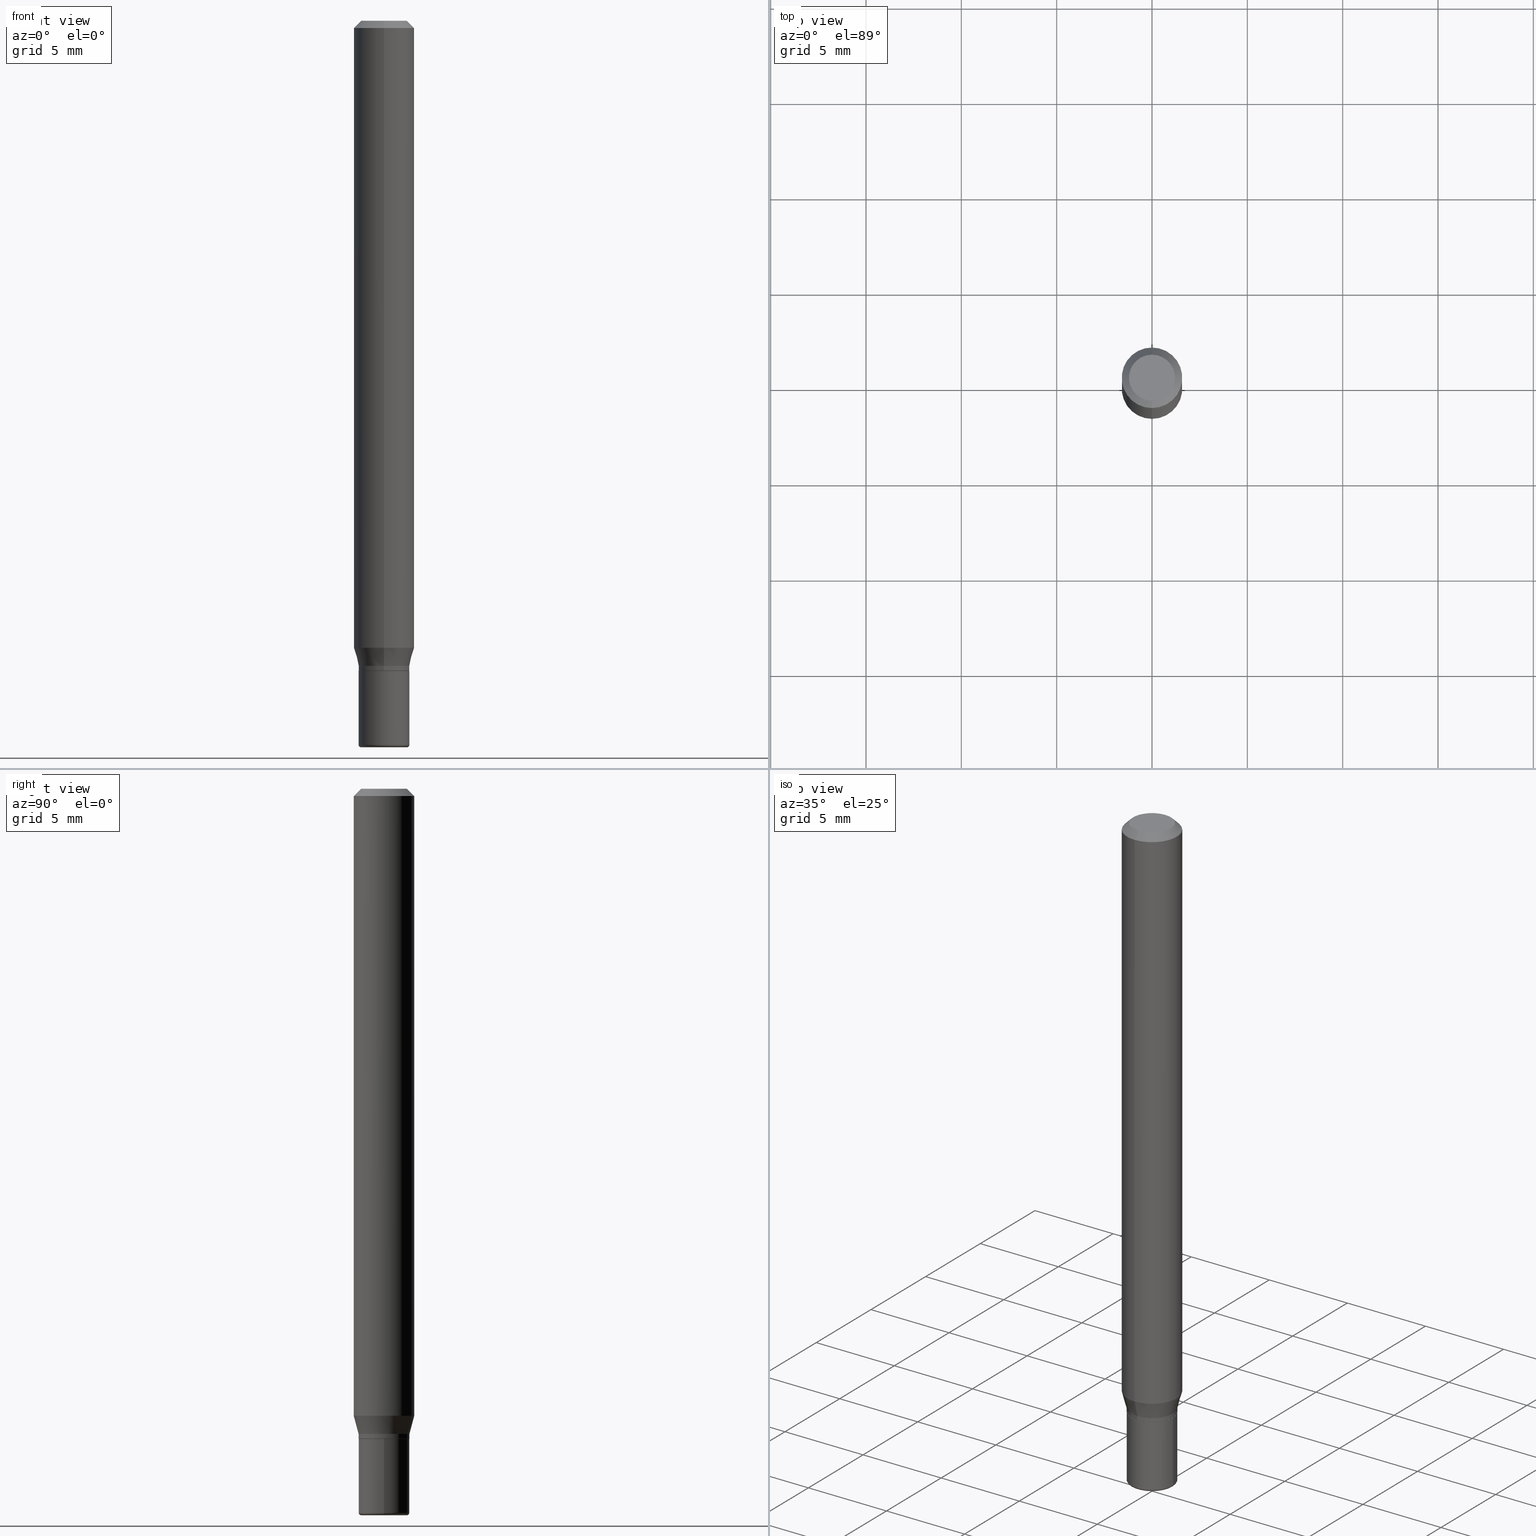
[diagram: canonical four-view strip — front | top / right | iso, engineering-drawing reading convention]
A machine part, canonical four-view strip (front | top / right | iso — engineering-drawing reading convention). The complete STEP part file that produces these views, byte-faithful:
ISO-10303-21;
HEADER;
FILE_DESCRIPTION (( 'STEP AP203' ),
    '1' );
FILE_NAME ('09226.STEP',
    '2024-02-29T23:40:03',
    ( '' ),
    ( '' ),
    'SwSTEP 2.0',
    'SolidWorks 2023',
    '' );
FILE_SCHEMA (( 'CONFIG_CONTROL_DESIGN' ));
ENDSEC;

DATA;
#1 = CARTESIAN_POINT ( 'NONE',  ( 4.440892098500944664E-16, 0.06249999999999995143, -0.01499999999999992138 ) ) ;
#2 = DIRECTION ( 'NONE',  ( -6.982962677686265922E-15, -1.000000000000000000, 5.253553833969728372E-15 ) ) ;
#3 = DIRECTION ( 'NONE',  ( -6.982962677686265922E-15, -1.000000000000000000, 5.203519987931918896E-15 ) ) ;
#4 = CARTESIAN_POINT ( 'NONE',  ( -4.364351673553916201E-16, -0.06250000000000000000, 2.182069885281771942E-16 ) ) ;
#5 = LOCAL_TIME ( 18, 40, 3.000000000000000000, #122 ) ;
#6 = DIRECTION ( 'NONE',  ( -4.851104656540966641E-15, -0.7071067811865503483, -0.7071067811865446862 ) ) ;
#7 = DIRECTION ( 'NONE',  ( -6.982962677686265133E-15, -1.000000000000000000, 3.491311816450835501E-15 ) ) ;
#8 = ADVANCED_FACE ( 'NONE', ( #371 ), #427, .F. ) ;
#9 = DIRECTION ( 'NONE',  ( -1.000000000000000000, 6.982962677686265922E-15, -4.876176775795935793E-29 ) ) ;
#10 = DIRECTION ( 'NONE',  ( 1.000000000000000000, -6.982962677686266711E-15, 4.876176775795936353E-29 ) ) ;
#11 = ORIENTED_EDGE ( 'NONE', *, *, #465, .T. ) ;
#12 = CIRCLE ( 'NONE', #185, 0.05250000000000017153 ) ;
#13 = AXIS2_PLACEMENT_3D ( 'NONE', #369, #463, #254 ) ;
#14 = ORIENTED_EDGE ( 'NONE', *, *, #286, .F. ) ;
#15 = DIRECTION ( 'NONE',  ( -2.445468806185136597E-29, 3.491481338843145583E-15, 1.000000000000000000 ) ) ;
#16 = EDGE_LOOP ( 'NONE', ( #365, #457, #370, #82 ) ) ;
#17 = EDGE_LOOP ( 'NONE', ( #167, #329, #215, #418 ) ) ;
#18 = CIRCLE ( 'NONE', #27, 0.005000000000000177046 ) ;
#19 = EDGE_LOOP ( 'NONE', ( #379, #172 ) ) ;
#20 = ORIENTED_EDGE ( 'NONE', *, *, #203, .T. ) ;
#21 = EDGE_CURVE ( 'NONE', #258, #368, #114, .T. ) ;
#22 = PERSON_AND_ORGANIZATION ( #223, #85 ) ;
#23 = CARTESIAN_POINT ( 'NONE',  ( -0.05249999999999999806, -4.579631342874949516E-15, -1.342000000000000082 ) ) ;
#24 = VERTEX_POINT ( 'NONE', #36 ) ;
#25 = EDGE_CURVE ( 'NONE', #312, #486, #121, .T. ) ;
#26 = AXIS2_PLACEMENT_3D ( 'NONE', #234, #394, #151 ) ;
#27 = AXIS2_PLACEMENT_3D ( 'NONE', #35, #317, #396 ) ;
#28 = ADVANCED_FACE ( 'NONE', ( #442 ), #387, .T. ) ;
#29 = EDGE_LOOP ( 'NONE', ( #241, #297 ) ) ;
#30 = PERSON_AND_ORGANIZATION ( #223, #85 ) ;
#31 = DIRECTION ( 'NONE',  ( 4.937700262164550409E-15, 0.7071067811865454633, -0.7071067811865495711 ) ) ;
#32 = DIRECTION ( 'NONE',  ( 5.024295867788576727E-15, 0.7071067811866224018, 0.7071067811864726327 ) ) ;
#33 = DIRECTION ( 'NONE',  ( -2.445468806185136597E-29, 3.491481338843145583E-15, 1.000000000000000000 ) ) ;
#34 = VECTOR ( 'NONE', #382, 39.37007874015748143 ) ;
#35 = CARTESIAN_POINT ( 'NONE',  ( -0.04749999999999999362, -4.882256802084455647E-15, -1.495000000000000107 ) ) ;
#36 = CARTESIAN_POINT ( 'NONE',  ( 0.05250000000000017153, -5.586370142149033090E-15, -1.495000000000000107 ) ) ;
#37 = EDGE_CURVE ( 'NONE', #199, #108, #267, .T. ) ;
#38 = CARTESIAN_POINT ( 'NONE',  ( 3.668380774558412962E-31, -5.236967724676149048E-17, -0.01499999999999970281 ) ) ;
#39 = DIRECTION ( 'NONE',  ( -6.982962677686265922E-15, -1.000000000000000000, 5.253553833969728372E-15 ) ) ;
#40 = EDGE_CURVE ( 'NONE', #285, #486, #71, .T. ) ;
#41 = DIRECTION ( 'NONE',  ( -6.982962677686265922E-15, -1.000000000000000000, 4.370956789862821150E-15 ) ) ;
#42 = CONICAL_SURFACE ( 'NONE', #252, 0.05200000000000008782, 0.7853981633975507526 ) ;
#43 = ORIENTED_EDGE ( 'NONE', *, *, #359, .T. ) ;
#44 = EDGE_CURVE ( 'NONE', #368, #258, #391, .T. ) ;
#45 = APPLICATION_PROTOCOL_DEFINITION ( 'international standard', 'config_control_design', 1994, #491 ) ;
#46 = EDGE_CURVE ( 'NONE', #128, #354, #444, .T. ) ;
#47 = CIRCLE ( 'NONE', #161, 0.06250000000000000000 ) ;
#48 = CIRCLE ( 'NONE', #445, 0.05200000000000008782 ) ;
#49 = LOCAL_TIME ( 18, 40, 3.000000000000000000, #126 ) ;
#50 = DIRECTION ( 'NONE',  ( -6.982962677686265133E-15, -1.000000000000000000, 3.491311816450835501E-15 ) ) ;
#51 = ORIENTED_EDGE ( 'NONE', *, *, #203, .F. ) ;
#52 = VERTEX_POINT ( 'NONE', #192 ) ;
#53 = ORIENTED_EDGE ( 'NONE', *, *, #109, .F. ) ;
#54 = AXIS2_PLACEMENT_3D ( 'NONE', #307, #232, #3 ) ;
#55 = EDGE_CURVE ( 'NONE', #469, #108, #47, .T. ) ;
#56 = ORIENTED_EDGE ( 'NONE', *, *, #305, .T. ) ;
#57 = VERTEX_POINT ( 'NONE', #308 ) ;
#58 = EDGE_LOOP ( 'NONE', ( #142, #439, #421, #51 ) ) ;
#59 = CALENDAR_DATE ( 2024, 29, 2 ) ;
#60 = ORIENTED_EDGE ( 'NONE', *, *, #272, .T. ) ;
#61 = DIRECTION ( 'NONE',  ( -6.982962677686265133E-15, -1.000000000000000000, 3.491311816450835107E-15 ) ) ;
#62 = ADVANCED_FACE ( 'NONE', ( #352 ), #265, .T. ) ;
#63 = CARTESIAN_POINT ( 'NONE',  ( -6.680775512965913768E-45, 9.537452049650120566E-31, 2.731767470527915752E-16 ) ) ;
#64 = VECTOR ( 'NONE', #212, 39.37007874015748143 ) ;
#65 = CARTESIAN_POINT ( 'NONE',  ( 3.655975865246779122E-29, -5.219764601570503141E-15, -1.495000000000000107 ) ) ;
#66 = CC_DESIGN_PERSON_AND_ORGANIZATION_ASSIGNMENT ( #220, #143, ( #422 ) ) ;
#67 = CARTESIAN_POINT ( 'NONE',  ( 3.316907271900976589E-16, 0.04750000000000000749, -2.924893775501889919E-17 ) ) ;
#68 = PERSON_AND_ORGANIZATION ( #223, #85 ) ;
#69 = CARTESIAN_POINT ( 'NONE',  ( 3.281977999638324867E-29, -4.685340457677020428E-15, -1.342000000000000082 ) ) ;
#70 = CARTESIAN_POINT ( 'NONE',  ( -6.680775512965913768E-45, 9.537452049650120566E-31, 2.731767470527915752E-16 ) ) ;
#71 = LINE ( 'NONE', #76, #89 ) ;
#72 = LINE ( 'NONE', #4, #281 ) ;
#73 = DIRECTION ( 'NONE',  ( -2.445468806185136597E-29, 3.491481338843145583E-15, 1.000000000000000000 ) ) ;
#74 = AXIS2_PLACEMENT_3D ( 'NONE', #154, #314, #313 ) ;
#75 = AXIS2_PLACEMENT_3D ( 'NONE', #449, #407, #411 ) ;
#76 = CARTESIAN_POINT ( 'NONE',  ( 3.694822225952854584E-16, 0.05199999999999539713, -1.342000000000000304 ) ) ;
#77 = DIRECTION ( 'NONE',  ( -2.445587183038990238E-29, 3.491311816450835107E-15, 1.000000000000000000 ) ) ;
#78 = DIRECTION ( 'NONE',  ( -2.445587183038990238E-29, 3.491311816450834712E-15, 1.000000000000000000 ) ) ;
#79 = CIRCLE ( 'NONE', #340, 0.05200000000000008782 ) ;
#80 = CARTESIAN_POINT ( 'NONE',  ( -0.05250000000000017153, -4.579631342874947939E-15, -1.495000000000000107 ) ) ;
#81 = AXIS2_PLACEMENT_3D ( 'NONE', #353, #274, #9 ) ;
#82 = ORIENTED_EDGE ( 'NONE', *, *, #44, .F. ) ;
#83 = CIRCLE ( 'NONE', #461, 0.04750000000000000749 ) ;
#84 = CYLINDRICAL_SURFACE ( 'NONE', #261, 0.05250000000000008826 ) ;
#85 = ORGANIZATION ( 'UNSPECIFIED', 'UNSPECIFIED', '' ) ;
#86 = ORIENTED_EDGE ( 'NONE', *, *, #403, .T. ) ;
#87 = APPROVAL_DATE_TIME ( #496, #450 ) ;
#88 = COORDINATED_UNIVERSAL_TIME_OFFSET ( 5, 0, .BEHIND. ) ;
#89 = VECTOR ( 'NONE', #32, 39.37007874015748143 ) ;
#90 = VECTOR ( 'NONE', #510, 39.37007874015748854 ) ;
#91 = PERSON_AND_ORGANIZATION_ROLE ( 'classification_officer' ) ;
#92 = ORIENTED_EDGE ( 'NONE', *, *, #97, .T. ) ;
#93 = CARTESIAN_POINT ( 'NONE',  ( 3.668203209277706016E-29, -5.237222008264719754E-15, -1.500000000000000444 ) ) ;
#94 = FACE_OUTER_BOUND ( 'NONE', #244, .T. ) ;
#95 = APPROVAL_ROLE ( '' ) ;
#96 = ORIENTED_EDGE ( 'NONE', *, *, #239, .T. ) ;
#97 = EDGE_CURVE ( 'NONE', #124, #52, #414, .T. ) ;
#98 = PERSON_AND_ORGANIZATION_ROLE ( 'design_supplier' ) ;
#99 = ORIENTED_EDGE ( 'NONE', *, *, #441, .F. ) ;
#100 = APPLICATION_CONTEXT ( 'configuration controlled 3d designs of mechanical parts and assemblies' ) ;
#101 = APPROVAL_DATE_TIME ( #253, #401 ) ;
#102 = CARTESIAN_POINT ( 'NONE',  ( 3.257522127807935994E-29, -4.650427339512513741E-15, -1.332000000000000517 ) ) ;
#103 = AXIS2_PLACEMENT_3D ( 'NONE', #186, #145, #271 ) ;
#104 = CIRCLE ( 'NONE', #177, 0.05250000000000008826 ) ;
#105 = FACE_OUTER_BOUND ( 'NONE', #516, .T. ) ;
#106 = ADVANCED_BREP_SHAPE_REPRESENTATION ( '09226', ( #470, #460, #115 ), #488 ) ;
#107 = CARTESIAN_POINT ( 'NONE',  ( 3.730349362740858638E-16, 0.05249999999999545308, -1.332000000000000739 ) ) ;
#108 = VERTEX_POINT ( 'NONE', #432 ) ;
#109 = EDGE_CURVE ( 'NONE', #199, #413, #306, .T. ) ;
#110 = CARTESIAN_POINT ( 'NONE',  ( 3.166251571593529273E-29, -4.520129808671913601E-15, -1.294679491924312087 ) ) ;
#111 = DIRECTION ( 'NONE',  ( -2.445587183038990238E-29, 3.491311816450835107E-15, 1.000000000000000000 ) ) ;
#112 =( NAMED_UNIT ( * ) PLANE_ANGLE_UNIT ( ) SI_UNIT ( $, .RADIAN. ) );
#113 = CARTESIAN_POINT ( 'NONE',  ( -0.04749999999999998668, -4.873221937037561039E-15, -1.500000000000000444 ) ) ;
#114 = CIRCLE ( 'NONE', #206, 0.05249999999999999806 ) ;
#115 = AXIS2_PLACEMENT_3D ( 'NONE', #288, #291, #453 ) ;
#116 = DIRECTION ( 'NONE',  ( 1.000000000000000000, -6.982962677686263555E-15, 0.000000000000000000 ) ) ;
#117 = ADVANCED_FACE ( 'NONE', ( #472 ), #400, .T. ) ;
#118 = CARTESIAN_POINT ( 'NONE',  ( 3.281977999638324867E-29, -4.685340457677020428E-15, -1.342000000000000082 ) ) ;
#119 = PLANE ( 'NONE',  #81 ) ;
#120 = CARTESIAN_POINT ( 'NONE',  ( -4.287811248607203282E-16, -0.06250000000000005551, -0.01499999999999948597 ) ) ;
#121 = CIRCLE ( 'NONE', #269, 0.05250000000000008826 ) ;
#122 = COORDINATED_UNIVERSAL_TIME_OFFSET ( 5, 0, .BEHIND. ) ;
#123 = ORIENTED_EDGE ( 'NONE', *, *, #456, .F. ) ;
#124 = VERTEX_POINT ( 'NONE', #113 ) ;
#125 = AXIS2_PLACEMENT_3D ( 'NONE', #110, #426, #483 ) ;
#126 = COORDINATED_UNIVERSAL_TIME_OFFSET ( 5, 0, .BEHIND. ) ;
#127 = EDGE_CURVE ( 'NONE', #52, #24, #136, .T. ) ;
#128 = VERTEX_POINT ( 'NONE', #1 ) ;
#129 = EDGE_LOOP ( 'NONE', ( #249, #373, #180, #424 ) ) ;
#130 = DESIGN_CONTEXT ( 'detailed design', #100, 'design' ) ;
#131 = DIRECTION ( 'NONE',  ( 1.000000000000000000, -6.982962677686268288E-15, 0.000000000000000000 ) ) ;
#132 = FACE_OUTER_BOUND ( 'NONE', #58, .T. ) ;
#133 = TOROIDAL_SURFACE ( 'NONE', #435, 0.04749999999999999362, 0.005000000000000177046 ) ;
#134 = EDGE_CURVE ( 'NONE', #326, #285, #79, .T. ) ;
#135 = CARTESIAN_POINT ( 'NONE',  ( 3.257522127807935994E-29, -4.650427339512513741E-15, -1.332000000000000517 ) ) ;
#136 = CIRCLE ( 'NONE', #228, 0.005000000000000177046 ) ;
#137 = DATE_AND_TIME ( #59, #393 ) ;
#138 = LINE ( 'NONE', #262, #176 ) ;
#139 = ORIENTED_EDGE ( 'NONE', *, *, #40, .F. ) ;
#140 = DIRECTION ( 'NONE',  ( -2.445587183038990238E-29, 3.491311816450834712E-15, 1.000000000000000000 ) ) ;
#141 = FACE_OUTER_BOUND ( 'NONE', #29, .T. ) ;
#142 = ORIENTED_EDGE ( 'NONE', *, *, #134, .T. ) ;
#143 = PERSON_AND_ORGANIZATION_ROLE ( 'creator' ) ;
#144 = DIRECTION ( 'NONE',  ( -2.445587183038990238E-29, 3.491311816450835107E-15, 1.000000000000000000 ) ) ;
#145 = DIRECTION ( 'NONE',  ( -2.445468806185136597E-29, 3.491481338843145583E-15, 1.000000000000000000 ) ) ;
#146 = CIRCLE ( 'NONE', #202, 0.04749999999999998668 ) ;
#147 = EDGE_CURVE ( 'NONE', #24, #454, #12, .T. ) ;
#148 = ORIENTED_EDGE ( 'NONE', *, *, #403, .F. ) ;
#149 = DIRECTION ( 'NONE',  ( 1.000000000000000000, -6.982962677686268288E-15, 0.000000000000000000 ) ) ;
#150 =( LENGTH_UNIT ( ) NAMED_UNIT ( * ) SI_UNIT ( $, .METRE. ) );
#151 = DIRECTION ( 'NONE',  ( -6.982962677686265922E-15, -1.000000000000000000, 5.203519987931918896E-15 ) ) ;
#152 = DIRECTION ( 'NONE',  ( -2.445468806185136877E-29, 3.491481338843145188E-15, 1.000000000000000000 ) ) ;
#153 = ADVANCED_FACE ( 'NONE', ( #229 ), #487, .T. ) ;
#154 = CARTESIAN_POINT ( 'NONE',  ( 0.000000000000000000, 0.000000000000000000, 0.000000000000000000 ) ) ;
#155 = AXIS2_PLACEMENT_3D ( 'NONE', #240, #243, #50 ) ;
#156 =( NAMED_UNIT ( * ) SI_UNIT ( $, .STERADIAN. ) SOLID_ANGLE_UNIT ( ) );
#157 = DIRECTION ( 'NONE',  ( -4.937700262165053702E-15, -0.7071067811866175168, 0.7071067811864775177 ) ) ;
#158 = CARTESIAN_POINT ( 'NONE',  ( 0.000000000000000000, 0.000000000000000000, 0.000000000000000000 ) ) ;
#159 = DIRECTION ( 'NONE',  ( 2.445587183038990238E-29, -3.491311816450835107E-15, -1.000000000000000000 ) ) ;
#160 = PLANE ( 'NONE',  #242 ) ;
#161 = AXIS2_PLACEMENT_3D ( 'NONE', #513, #343, #41 ) ;
#162 = DATE_AND_TIME ( #282, #5 ) ;
#163 = AXIS2_PLACEMENT_3D ( 'NONE', #135, #184, #256 ) ;
#164 = CIRCLE ( 'NONE', #324, 0.05250000000000017153 ) ;
#165 = APPROVAL ( #200, 'UNSPECIFIED' ) ;
#166 = MECHANICAL_CONTEXT ( 'NONE', #491, 'mechanical' ) ;
#167 = ORIENTED_EDGE ( 'NONE', *, *, #25, .T. ) ;
#168 = ORIENTED_EDGE ( 'NONE', *, *, #44, .T. ) ;
#169 = CARTESIAN_POINT ( 'NONE',  ( 3.281819137900453057E-29, -4.685567956727500961E-15, -1.342000000000000082 ) ) ;
#170 = DIRECTION ( 'NONE',  ( -2.445468806185136877E-29, 3.491481338843145188E-15, 1.000000000000000000 ) ) ;
#171 = DIRECTION ( 'NONE',  ( -6.982962677686265133E-15, -1.000000000000000000, 3.491311816450835107E-15 ) ) ;
#172 = ORIENTED_EDGE ( 'NONE', *, *, #465, .F. ) ;
#173 = DATE_TIME_ROLE ( 'creation_date' ) ;
#174 = EDGE_LOOP ( 'NONE', ( #475, #443, #500, #123 ) ) ;
#175 = CARTESIAN_POINT ( 'NONE',  ( 3.281977999638324867E-29, -4.685340457677020428E-15, -1.342000000000000082 ) ) ;
#176 = VECTOR ( 'NONE', #157, 39.37007874015748143 ) ;
#177 = AXIS2_PLACEMENT_3D ( 'NONE', #300, #509, #198 ) ;
#178 = LINE ( 'NONE', #259, #236 ) ;
#179 = FACE_OUTER_BOUND ( 'NONE', #246, .T. ) ;
#180 = ORIENTED_EDGE ( 'NONE', *, *, #327, .T. ) ;
#181 = PERSON_AND_ORGANIZATION ( #223, #85 ) ;
#182 = CARTESIAN_POINT ( 'NONE',  ( -3.773273898774340269E-16, -0.04750000000000000749, 4.390140583342062744E-16 ) ) ;
#183 = CARTESIAN_POINT ( 'NONE',  ( 3.281819137900453057E-29, -4.685567956727500961E-15, -1.342000000000000082 ) ) ;
#184 = DIRECTION ( 'NONE',  ( -2.445587183038990238E-29, 3.491311816450835107E-15, 1.000000000000000000 ) ) ;
#185 = AXIS2_PLACEMENT_3D ( 'NONE', #481, #73, #116 ) ;
#186 = CARTESIAN_POINT ( 'NONE',  ( 3.668203209277706016E-29, -5.237222008264719754E-15, -1.500000000000000444 ) ) ;
#187 = AXIS2_PLACEMENT_3D ( 'NONE', #175, #296, #506 ) ;
#188 = FACE_OUTER_BOUND ( 'NONE', #129, .T. ) ;
#189 = DIRECTION ( 'NONE',  ( 1.839019923739593216E-15, 0.2588190451025239591, 0.9659258262890673130 ) ) ;
#190 = ORIENTED_EDGE ( 'NONE', *, *, #479, .F. ) ;
#191 = ADVANCED_FACE ( 'NONE', ( #311 ), #357, .T. ) ;
#192 = CARTESIAN_POINT ( 'NONE',  ( 0.04749999999999998668, -5.568912735454817265E-15, -1.500000000000000444 ) ) ;
#193 = PRODUCT_RELATED_PRODUCT_CATEGORY ( 'detail', '', ( #355 ) ) ;
#194 = CARTESIAN_POINT ( 'NONE',  ( -3.666055405784961265E-16, -0.05250000000000468181, -1.341499999999999915 ) ) ;
#195 = DIRECTION ( 'NONE',  ( -2.445587183038990238E-29, 3.491311816450835107E-15, 1.000000000000000000 ) ) ;
#196 = AXIS2_PLACEMENT_3D ( 'NONE', #222, #77, #7 ) ;
#197 = LOCAL_TIME ( 18, 40, 3.000000000000000000, #88 ) ;
#198 = DIRECTION ( 'NONE',  ( -6.982962677686265133E-15, -1.000000000000000000, 5.203519987931921262E-15 ) ) ;
#199 = VERTEX_POINT ( 'NONE', #437 ) ;
#200 = APPROVAL_STATUS ( 'not_yet_approved' ) ;
#201 = PRODUCT_DEFINITION_SHAPE ( 'NONE', 'NONE',  #422 ) ;
#202 = AXIS2_PLACEMENT_3D ( 'NONE', #93, #217, #416 ) ;
#203 = EDGE_CURVE ( 'NONE', #326, #312, #138, .T. ) ;
#204 = APPROVAL_STATUS ( 'not_yet_approved' ) ;
#205 = PERSON_AND_ORGANIZATION_ROLE ( 'design_owner' ) ;
#206 = AXIS2_PLACEMENT_3D ( 'NONE', #169, #501, #131 ) ;
#207 = CONICAL_SURFACE ( 'NONE', #342, 0.06250000000000000000, 0.7853981633974488341 ) ;
#208 = CC_DESIGN_APPROVAL ( #450, ( #462 ) ) ;
#209 = DIRECTION ( 'NONE',  ( 2.445587183038990238E-29, -3.491311816450834712E-15, -1.000000000000000000 ) ) ;
#210 = COORDINATED_UNIVERSAL_TIME_OFFSET ( 5, 0, .BEHIND. ) ;
#211 = ORIENTED_EDGE ( 'NONE', *, *, #441, .T. ) ;
#212 = DIRECTION ( 'NONE',  ( -2.445587183038990238E-29, 3.491311816450834712E-15, 1.000000000000000000 ) ) ;
#213 = ORIENTED_EDGE ( 'NONE', *, *, #127, .T. ) ;
#214 = ADVANCED_FACE ( 'NONE', ( #179 ), #133, .T. ) ;
#215 = ORIENTED_EDGE ( 'NONE', *, *, #305, .F. ) ;
#216 = CARTESIAN_POINT ( 'NONE',  ( 3.668380774558412962E-31, -5.236967724676149048E-17, -0.01499999999999970281 ) ) ;
#217 = DIRECTION ( 'NONE',  ( -2.445468806185136597E-29, 3.491481338843145583E-15, 1.000000000000000000 ) ) ;
#218 = CARTESIAN_POINT ( 'NONE',  ( 3.730349362740532247E-16, 0.05250000000000009520, -1.832938703636692011E-16 ) ) ;
#219 = CIRCLE ( 'NONE', #75, 0.06250000000000000000 ) ;
#220 = PERSON_AND_ORGANIZATION ( #223, #85 ) ;
#221 = FACE_OUTER_BOUND ( 'NONE', #420, .T. ) ;
#222 = CARTESIAN_POINT ( 'NONE',  ( 0.000000000000000000, 0.000000000000000000, 0.000000000000000000 ) ) ;
#223 = PERSON ( 'UNSPECIFIED', 'UNSPECIFIED', 'UNSPECIFIED', ('UNSPECIFIED'), ('UNSPECIFIED'), ('UNSPECIFIED') ) ;
#224 = DIRECTION ( 'NONE',  ( -2.445587183038990238E-29, 3.491311816450835107E-15, 1.000000000000000000 ) ) ;
#225 = CC_DESIGN_DATE_AND_TIME_ASSIGNMENT ( #137, #464, ( #462 ) ) ;
#226 = DIRECTION ( 'NONE',  ( 1.000000000000000000, -6.982962677686280121E-15, 0.000000000000000000 ) ) ;
#227 =( CONVERSION_BASED_UNIT ( 'INCH', #433 ) LENGTH_UNIT ( ) NAMED_UNIT ( #372 ) );
#228 = AXIS2_PLACEMENT_3D ( 'NONE', #482, #390, #226 ) ;
#229 = FACE_OUTER_BOUND ( 'NONE', #447, .T. ) ;
#230 = VECTOR ( 'NONE', #6, 39.37007874015748143 ) ;
#231 = DIRECTION ( 'NONE',  ( -2.445587183038990238E-29, 3.491311816450834712E-15, 1.000000000000000000 ) ) ;
#232 = DIRECTION ( 'NONE',  ( -2.445587183038990238E-29, 3.491311816450835107E-15, 1.000000000000000000 ) ) ;
#233 = CARTESIAN_POINT ( 'NONE',  ( 3.281977999638324867E-29, -4.685340457677020428E-15, -1.342000000000000082 ) ) ;
#234 = CARTESIAN_POINT ( 'NONE',  ( 3.257522127807935994E-29, -4.650427339512513741E-15, -1.332000000000000517 ) ) ;
#235 = VECTOR ( 'NONE', #189, 39.37007874015748854 ) ;
#236 = VECTOR ( 'NONE', #170, 39.37007874015748143 ) ;
#237 = CARTESIAN_POINT ( 'NONE',  ( 0.05250000000000008826, -3.666055405785296038E-16, 2.559992807292870916E-30 ) ) ;
#238 = ORIENTED_EDGE ( 'NONE', *, *, #310, .T. ) ;
#239 = EDGE_CURVE ( 'NONE', #57, #128, #386, .T. ) ;
#240 = CARTESIAN_POINT ( 'NONE',  ( 0.000000000000000000, 0.000000000000000000, 0.000000000000000000 ) ) ;
#241 = ORIENTED_EDGE ( 'NONE', *, *, #359, .F. ) ;
#242 = AXIS2_PLACEMENT_3D ( 'NONE', #233, #78, #478 ) ;
#243 = DIRECTION ( 'NONE',  ( -2.445587183038990238E-29, 3.491311816450835107E-15, 1.000000000000000000 ) ) ;
#244 = EDGE_LOOP ( 'NONE', ( #56, #502, #410, #466 ) ) ;
#245 = UNCERTAINTY_MEASURE_WITH_UNIT (LENGTH_MEASURE( 1.000000000000000082E-05 ), #227, 'distance_accuracy_value', 'NONE');
#246 = EDGE_LOOP ( 'NONE', ( #294, #92, #213, #498 ) ) ;
#247 = EDGE_LOOP ( 'NONE', ( #139, #11, #20, #99 ) ) ;
#248 = CARTESIAN_POINT ( 'NONE',  ( -3.631140592396536617E-16, -0.05200000000000477157, -1.341999999999999860 ) ) ;
#249 = ORIENTED_EDGE ( 'NONE', *, *, #272, .F. ) ;
#250 = DATE_AND_TIME ( #428, #290 ) ;
#251 = CYLINDRICAL_SURFACE ( 'NONE', #13, 0.06250000000000000000 ) ;
#252 = AXIS2_PLACEMENT_3D ( 'NONE', #69, #224, #389 ) ;
#253 = DATE_AND_TIME ( #377, #197 ) ;
#254 = DIRECTION ( 'NONE',  ( -6.982962677686265922E-15, -1.000000000000000000, 3.491311816450835107E-15 ) ) ;
#255 = ORIENTED_EDGE ( 'NONE', *, *, #127, .F. ) ;
#256 = DIRECTION ( 'NONE',  ( -6.982962677686265922E-15, -1.000000000000000000, 5.203519987931918896E-15 ) ) ;
#257 = SHAPE_DEFINITION_REPRESENTATION ( #201, #106 ) ;
#258 = VERTEX_POINT ( 'NONE', #471 ) ;
#259 = CARTESIAN_POINT ( 'NONE',  ( -0.05250000000000008826, 3.730349362740532247E-16, -2.582440922383829865E-30 ) ) ;
#260 = DIRECTION ( 'NONE',  ( -2.445587183038990238E-29, 3.491311816450835107E-15, 1.000000000000000000 ) ) ;
#261 = AXIS2_PLACEMENT_3D ( 'NONE', #364, #15, #10 ) ;
#262 = CARTESIAN_POINT ( 'NONE',  ( -3.631140592396536617E-16, -0.05200000000000477157, -1.341999999999999860 ) ) ;
#263 = VERTEX_POINT ( 'NONE', #182 ) ;
#264 = ADVANCED_FACE ( 'NONE', ( #94 ), #378, .T. ) ;
#265 = CYLINDRICAL_SURFACE ( 'NONE', #495, 0.05250000000000008826 ) ;
#266 = DIRECTION ( 'NONE',  ( -6.982962677686265922E-15, -1.000000000000000000, 5.203519987931918896E-15 ) ) ;
#267 = LINE ( 'NONE', #107, #235 ) ;
#268 = ORIENTED_EDGE ( 'NONE', *, *, #289, .F. ) ;
#269 = AXIS2_PLACEMENT_3D ( 'NONE', #277, #111, #397 ) ;
#270 = AXIS2_PLACEMENT_3D ( 'NONE', #337, #468, #518 ) ;
#271 = DIRECTION ( 'NONE',  ( 1.000000000000000000, -6.982962677686263555E-15, 0.000000000000000000 ) ) ;
#272 = EDGE_CURVE ( 'NONE', #263, #57, #83, .T. ) ;
#273 = APPROVAL_PERSON_ORGANIZATION ( #409, #450, #95 ) ;
#274 = DIRECTION ( 'NONE',  ( 2.438088387897960049E-29, -3.491481338843145188E-15, -1.000000000000000000 ) ) ;
#275 = CARTESIAN_POINT ( 'NONE',  ( 3.655975865246779122E-29, -5.219764601570503141E-15, -1.495000000000000107 ) ) ;
#276 = DIRECTION ( 'NONE',  ( -2.445587183038990238E-29, 3.491311816450835107E-15, 1.000000000000000000 ) ) ;
#277 = CARTESIAN_POINT ( 'NONE',  ( 3.280755206046805816E-29, -4.683594801768795725E-15, -1.341500000000000137 ) ) ;
#278 = FACE_OUTER_BOUND ( 'NONE', #19, .T. ) ;
#279 = ADVANCED_FACE ( 'NONE', ( #141 ), #431, .F. ) ;
#280 = AXIS2_PLACEMENT_3D ( 'NONE', #67, #209, #367 ) ;
#281 = VECTOR ( 'NONE', #231, 39.37007874015748143 ) ;
#282 = CALENDAR_DATE ( 2024, 29, 2 ) ;
#283 = CC_DESIGN_PERSON_AND_ORGANIZATION_ASSIGNMENT ( #406, #205, ( #355 ) ) ;
#284 = ORIENTED_EDGE ( 'NONE', *, *, #46, .F. ) ;
#285 = VERTEX_POINT ( 'NONE', #301 ) ;
#286 = EDGE_CURVE ( 'NONE', #57, #263, #363, .T. ) ;
#287 = ORIENTED_EDGE ( 'NONE', *, *, #511, .T. ) ;
#288 = CARTESIAN_POINT ( 'NONE',  ( 0.000000000000000000, 0.000000000000000000, 0.000000000000000000 ) ) ;
#289 = EDGE_CURVE ( 'NONE', #486, #199, #341, .T. ) ;
#290 = LOCAL_TIME ( 18, 40, 3.000000000000000000, #210 ) ;
#291 = DIRECTION ( 'NONE',  ( 0.000000000000000000, 0.000000000000000000, 1.000000000000000000 ) ) ;
#292 = CC_DESIGN_APPROVAL ( #401, ( #351 ) ) ;
#293 = CALENDAR_DATE ( 2024, 29, 2 ) ;
#294 = ORIENTED_EDGE ( 'NONE', *, *, #511, .F. ) ;
#295 = PERSON_AND_ORGANIZATION_ROLE ( 'creator' ) ;
#296 = DIRECTION ( 'NONE',  ( -2.445587183038990238E-29, 3.491311816450835107E-15, 1.000000000000000000 ) ) ;
#297 = ORIENTED_EDGE ( 'NONE', *, *, #97, .F. ) ;
#298 = VECTOR ( 'NONE', #152, 39.37007874015748143 ) ;
#299 = EDGE_LOOP ( 'NONE', ( #43, #287, #473, #255 ) ) ;
#300 = CARTESIAN_POINT ( 'NONE',  ( 3.280755206046805816E-29, -4.683594801768795725E-15, -1.341500000000000137 ) ) ;
#301 = CARTESIAN_POINT ( 'NONE',  ( 3.712585794346857104E-16, 0.05199999999999539713, -1.342000000000000304 ) ) ;
#302 = EDGE_CURVE ( 'NONE', #413, #469, #504, .T. ) ;
#303 = DIRECTION ( 'NONE',  ( 2.445587183038990238E-29, -3.491311816450835107E-15, -1.000000000000000000 ) ) ;
#304 = CARTESIAN_POINT ( 'NONE',  ( 4.364351673553919652E-16, 0.06249999999999995143, -0.01499999999999992138 ) ) ;
#305 = EDGE_CURVE ( 'NONE', #413, #199, #497, .T. ) ;
#306 = CIRCLE ( 'NONE', #54, 0.05250000000000010908 ) ;
#307 = CARTESIAN_POINT ( 'NONE',  ( 3.257522127807935994E-29, -4.650427339512513741E-15, -1.332000000000000517 ) ) ;
#308 = CARTESIAN_POINT ( 'NONE',  ( 3.840629472727447874E-16, 0.04750000000000000749, 1.073394357713768884E-16 ) ) ;
#309 = LINE ( 'NONE', #237, #298 ) ;
#310 = EDGE_CURVE ( 'NONE', #108, #469, #517, .T. ) ;
#311 = FACE_OUTER_BOUND ( 'NONE', #299, .T. ) ;
#312 = VERTEX_POINT ( 'NONE', #194 ) ;
#313 = DIRECTION ( 'NONE',  ( -6.982962677686265922E-15, -1.000000000000000000, 3.491311816450835107E-15 ) ) ;
#314 = DIRECTION ( 'NONE',  ( -2.445587183038990238E-29, 3.491311816450835107E-15, 1.000000000000000000 ) ) ;
#315 = DIRECTION ( 'NONE',  ( 6.982962677686265922E-15, 1.000000000000000000, -3.483106191921935554E-15 ) ) ;
#316 = CC_DESIGN_PERSON_AND_ORGANIZATION_ASSIGNMENT ( #22, #91, ( #462 ) ) ;
#317 = DIRECTION ( 'NONE',  ( 7.105427357601001859E-15, 1.000000000000000000, -3.491481338843145583E-15 ) ) ;
#318 = VECTOR ( 'NONE', #140, 39.37007874015748143 ) ;
#319 = CYLINDRICAL_SURFACE ( 'NONE', #155, 0.05250000000000009520 ) ;
#320 = EDGE_CURVE ( 'NONE', #263, #354, #350, .T. ) ;
#321 = DIRECTION ( 'NONE',  ( 1.000000000000000000, -6.982962677686263555E-15, 4.883557194083111780E-29 ) ) ;
#322 = ORIENTED_EDGE ( 'NONE', *, *, #320, .F. ) ;
#323 = AXIS2_PLACEMENT_3D ( 'NONE', #38, #195, #346 ) ;
#324 = AXIS2_PLACEMENT_3D ( 'NONE', #65, #375, #385 ) ;
#325 = APPLICATION_PROTOCOL_DEFINITION ( 'international standard', 'config_control_design', 1994, #100 ) ;
#326 = VERTEX_POINT ( 'NONE', #248 ) ;
#327 = EDGE_CURVE ( 'NONE', #354, #128, #219, .T. ) ;
#328 = CARTESIAN_POINT ( 'NONE',  ( 4.440892098500625669E-16, 0.06250000000000000000, -2.182069885281771942E-16 ) ) ;
#329 = ORIENTED_EDGE ( 'NONE', *, *, #289, .T. ) ;
#330 = CARTESIAN_POINT ( 'NONE',  ( -4.364351673553912750E-16, -0.06250000000000005551, -0.01499999999999948597 ) ) ;
#331 = CC_DESIGN_SECURITY_CLASSIFICATION ( #462, ( #351 ) ) ;
#332 = ADVANCED_FACE ( 'NONE', ( #360 ), #84, .T. ) ;
#333 = DIRECTION ( 'NONE',  ( 1.000000000000000000, -6.982962677686263555E-15, 4.883557194083111780E-29 ) ) ;
#334 = CARTESIAN_POINT ( 'NONE',  ( -3.666055405784971126E-16, -0.05250000000000475814, -1.332000000000000073 ) ) ;
#335 = ADVANCED_FACE ( 'NONE', ( #459 ), #319, .T. ) ;
#336 = CARTESIAN_POINT ( 'NONE',  ( -3.666055405784971126E-16, -0.05250000000000475814, -1.332000000000000073 ) ) ;
#337 = CARTESIAN_POINT ( 'NONE',  ( 3.582686580359767159E-29, -5.359686688179454114E-15, -1.500000000000000444 ) ) ;
#338 = DIRECTION ( 'NONE',  ( -2.445468806185136597E-29, 3.491481338843145583E-15, 1.000000000000000000 ) ) ;
#339 = CARTESIAN_POINT ( 'NONE',  ( 3.655975865246779122E-29, -5.219764601570503141E-15, -1.495000000000000107 ) ) ;
#340 = AXIS2_PLACEMENT_3D ( 'NONE', #476, #434, #2 ) ;
#341 = LINE ( 'NONE', #218, #34 ) ;
#342 = AXIS2_PLACEMENT_3D ( 'NONE', #398, #159, #315 ) ;
#343 = DIRECTION ( 'NONE',  ( -2.445587183038990238E-29, 3.491311816450835107E-15, 1.000000000000000000 ) ) ;
#344 = EDGE_CURVE ( 'NONE', #312, #413, #429, .T. ) ;
#345 = CARTESIAN_POINT ( 'NONE',  ( 3.730349362740866527E-16, 0.05249999999999549471, -1.341500000000000359 ) ) ;
#346 = DIRECTION ( 'NONE',  ( -6.982962677686265922E-15, -1.000000000000000000, 3.483106191921935554E-15 ) ) ;
#347 = CARTESIAN_POINT ( 'NONE',  ( -4.364351673553597698E-16, -0.06250000000000449640, -1.294679491924311865 ) ) ;
#348 = DIRECTION ( 'NONE',  ( 1.000000000000000000, -6.982962677686266711E-15, 4.876176775795936353E-29 ) ) ;
#349 = FACE_OUTER_BOUND ( 'NONE', #490, .T. ) ;
#350 = LINE ( 'NONE', #120, #230 ) ;
#351 = PRODUCT_DEFINITION_FORMATION_WITH_SPECIFIED_SOURCE ( 'ANY', '', #355, .NOT_KNOWN. ) ;
#352 = FACE_OUTER_BOUND ( 'NONE', #174, .T. ) ;
#353 = CARTESIAN_POINT ( 'NONE',  ( 3.666055405785617499E-16, 0.05249999999999530736, -1.342000000000000304 ) ) ;
#354 = VERTEX_POINT ( 'NONE', #330 ) ;
#355 = PRODUCT ( '09226', '09226', '', ( #166 ) ) ;
#356 = ORIENTED_EDGE ( 'NONE', *, *, #286, .T. ) ;
#357 = TOROIDAL_SURFACE ( 'NONE', #404, 0.04749999999999999362, 0.005000000000000177046 ) ;
#358 = AXIS2_PLACEMENT_3D ( 'NONE', #183, #338, #149 ) ;
#359 = EDGE_CURVE ( 'NONE', #52, #124, #146, .T. ) ;
#360 = FACE_OUTER_BOUND ( 'NONE', #16, .T. ) ;
#361 = ADVANCED_FACE ( 'NONE', ( #105 ), #415, .T. ) ;
#362 = CLOSED_SHELL ( 'NONE', ( #191, #62, #485, #332, #214, #279 ) ) ;
#363 = CIRCLE ( 'NONE', #402, 0.04750000000000000749 ) ;
#364 = CARTESIAN_POINT ( 'NONE',  ( 0.000000000000000000, 0.000000000000000000, 0.000000000000000000 ) ) ;
#365 = ORIENTED_EDGE ( 'NONE', *, *, #374, .F. ) ;
#366 = ADVANCED_FACE ( 'NONE', ( #221 ), #251, .T. ) ;
#367 = DIRECTION ( 'NONE',  ( 6.982962677686265922E-15, 1.000000000000000000, -3.491311816450834712E-15 ) ) ;
#368 = VERTEX_POINT ( 'NONE', #23 ) ;
#369 = CARTESIAN_POINT ( 'NONE',  ( 0.000000000000000000, 0.000000000000000000, 0.000000000000000000 ) ) ;
#370 = ORIENTED_EDGE ( 'NONE', *, *, #456, .T. ) ;
#371 = FACE_OUTER_BOUND ( 'NONE', #451, .T. ) ;
#372 = DIMENSIONAL_EXPONENTS ( 1.000000000000000000, 0.000000000000000000, 0.000000000000000000, 0.000000000000000000, 0.000000000000000000, 0.000000000000000000, 0.000000000000000000 ) ;
#373 = ORIENTED_EDGE ( 'NONE', *, *, #320, .T. ) ;
#374 = EDGE_CURVE ( 'NONE', #454, #368, #178, .T. ) ;
#375 = DIRECTION ( 'NONE',  ( -2.445468806185136597E-29, 3.491481338843145583E-15, 1.000000000000000000 ) ) ;
#376 = DIRECTION ( 'NONE',  ( -2.445468806185136597E-29, 3.491481338843145583E-15, 1.000000000000000000 ) ) ;
#377 = CALENDAR_DATE ( 2024, 29, 2 ) ;
#378 = CONICAL_SURFACE ( 'NONE', #163, 0.05250000000000010908, 0.2617993877991492968 ) ;
#379 = ORIENTED_EDGE ( 'NONE', *, *, #134, .F. ) ;
#380 = APPROVAL_PERSON_ORGANIZATION ( #484, #165, #446 ) ;
#381 = FACE_OUTER_BOUND ( 'NONE', #247, .T. ) ;
#382 = DIRECTION ( 'NONE',  ( -2.445587183038990238E-29, 3.491311816450834712E-15, 1.000000000000000000 ) ) ;
#383 = ORIENTED_EDGE ( 'NONE', *, *, #21, .T. ) ;
#384 = APPROVAL_ROLE ( '' ) ;
#385 = DIRECTION ( 'NONE',  ( 1.000000000000000000, -6.982962677686263555E-15, 0.000000000000000000 ) ) ;
#386 = LINE ( 'NONE', #304, #505 ) ;
#387 = CYLINDRICAL_SURFACE ( 'NONE', #196, 0.05250000000000009520 ) ;
#388 = SECURITY_CLASSIFICATION_LEVEL ( 'unclassified' ) ;
#389 = DIRECTION ( 'NONE',  ( -6.982962677686265922E-15, -1.000000000000000000, 5.253553833969728372E-15 ) ) ;
#390 = DIRECTION ( 'NONE',  ( -6.982962677686266711E-15, -1.000000000000000000, 3.491481338843145583E-15 ) ) ;
#391 = CIRCLE ( 'NONE', #358, 0.05249999999999999806 ) ;
#392 = AXIS2_PLACEMENT_3D ( 'NONE', #216, #303, #503 ) ;
#393 = LOCAL_TIME ( 18, 40, 3.000000000000000000, #419 ) ;
#394 = DIRECTION ( 'NONE',  ( -2.445587183038990238E-29, 3.491311816450835107E-15, 1.000000000000000000 ) ) ;
#395 = CC_DESIGN_PERSON_AND_ORGANIZATION_ASSIGNMENT ( #30, #295, ( #351 ) ) ;
#396 = DIRECTION ( 'NONE',  ( -1.000000000000000000, 7.105427357601061812E-15, 0.000000000000000000 ) ) ;
#397 = DIRECTION ( 'NONE',  ( -6.982962677686265133E-15, -1.000000000000000000, 5.203519987931921262E-15 ) ) ;
#398 = CARTESIAN_POINT ( 'NONE',  ( 3.668380774558412962E-31, -5.236967724676149048E-17, -0.01499999999999970281 ) ) ;
#399 = EDGE_CURVE ( 'NONE', #454, #24, #164, .T. ) ;
#400 = CYLINDRICAL_SURFACE ( 'NONE', #74, 0.06250000000000000000 ) ;
#401 = APPROVAL ( #458, 'UNSPECIFIED' ) ;
#402 = AXIS2_PLACEMENT_3D ( 'NONE', #63, #144, #171 ) ;
#403 = EDGE_CURVE ( 'NONE', #108, #128, #512, .T. ) ;
#404 = AXIS2_PLACEMENT_3D ( 'NONE', #275, #440, #321 ) ;
#405 = AXIS2_PLACEMENT_3D ( 'NONE', #102, #260, #266 ) ;
#406 = PERSON_AND_ORGANIZATION ( #223, #85 ) ;
#407 = DIRECTION ( 'NONE',  ( -2.445587183038990238E-29, 3.491311816450835107E-15, 1.000000000000000000 ) ) ;
#408 = ORIENTED_EDGE ( 'NONE', *, *, #109, .T. ) ;
#409 = PERSON_AND_ORGANIZATION ( #223, #85 ) ;
#410 = ORIENTED_EDGE ( 'NONE', *, *, #55, .F. ) ;
#411 = DIRECTION ( 'NONE',  ( -6.982962677686265922E-15, -1.000000000000000000, 3.483106191921935554E-15 ) ) ;
#412 = CC_DESIGN_PERSON_AND_ORGANIZATION_ASSIGNMENT ( #181, #98, ( #351 ) ) ;
#413 = VERTEX_POINT ( 'NONE', #336 ) ;
#414 = CIRCLE ( 'NONE', #103, 0.04749999999999998668 ) ;
#415 = CONICAL_SURFACE ( 'NONE', #392, 0.06250000000000000000, 0.7853981633974488341 ) ;
#416 = DIRECTION ( 'NONE',  ( 1.000000000000000000, -6.982962677686263555E-15, 0.000000000000000000 ) ) ;
#417 = EDGE_LOOP ( 'NONE', ( #477, #86, #489, #190 ) ) ;
#418 = ORIENTED_EDGE ( 'NONE', *, *, #344, .F. ) ;
#419 = COORDINATED_UNIVERSAL_TIME_OFFSET ( 5, 0, .BEHIND. ) ;
#420 = EDGE_LOOP ( 'NONE', ( #148, #238, #508, #284 ) ) ;
#421 = ORIENTED_EDGE ( 'NONE', *, *, #25, .F. ) ;
#422 = PRODUCT_DEFINITION ( 'UNKNOWN', '', #351, #130 ) ;
#423 = ORIENTED_EDGE ( 'NONE', *, *, #37, .F. ) ;
#424 = ORIENTED_EDGE ( 'NONE', *, *, #239, .F. ) ;
#425 = APPROVAL_PERSON_ORGANIZATION ( #68, #401, #384 ) ;
#426 = DIRECTION ( 'NONE',  ( -2.445587183038990238E-29, 3.491311816450835107E-15, 1.000000000000000000 ) ) ;
#427 = PLANE ( 'NONE',  #280 ) ;
#428 = CALENDAR_DATE ( 2024, 29, 2 ) ;
#429 = LINE ( 'NONE', #474, #64 ) ;
#430 = ADVANCED_FACE ( 'NONE', ( #132 ), #42, .T. ) ;
#431 = PLANE ( 'NONE',  #270 ) ;
#432 = CARTESIAN_POINT ( 'NONE',  ( 4.440892098500943678E-16, 0.06249999999999550360, -1.294679491924312309 ) ) ;
#433 = LENGTH_MEASURE_WITH_UNIT ( LENGTH_MEASURE( 0.02539999999999999897 ), #150 );
#434 = DIRECTION ( 'NONE',  ( -2.445587183038990238E-29, 3.491311816450835107E-15, 1.000000000000000000 ) ) ;
#435 = AXIS2_PLACEMENT_3D ( 'NONE', #339, #376, #333 ) ;
#436 = CC_DESIGN_APPROVAL ( #165, ( #422 ) ) ;
#437 = CARTESIAN_POINT ( 'NONE',  ( 4.085620730620901158E-16, 0.05249999999999545308, -1.332000000000000739 ) ) ;
#438 = ADVANCED_FACE ( 'NONE', ( #381 ), #452, .T. ) ;
#439 = ORIENTED_EDGE ( 'NONE', *, *, #40, .T. ) ;
#440 = DIRECTION ( 'NONE',  ( -2.445468806185136597E-29, 3.491481338843145583E-15, 1.000000000000000000 ) ) ;
#441 = EDGE_CURVE ( 'NONE', #486, #312, #104, .T. ) ;
#442 = FACE_OUTER_BOUND ( 'NONE', #494, .T. ) ;
#443 = ORIENTED_EDGE ( 'NONE', *, *, #374, .T. ) ;
#444 = CIRCLE ( 'NONE', #323, 0.06250000000000000000 ) ;
#445 = AXIS2_PLACEMENT_3D ( 'NONE', #118, #276, #39 ) ;
#446 = APPROVAL_ROLE ( '' ) ;
#447 = EDGE_LOOP ( 'NONE', ( #423, #408, #493, #499 ) ) ;
#448 = ADVANCED_FACE ( 'NONE', ( #188 ), #207, .T. ) ;
#449 = CARTESIAN_POINT ( 'NONE',  ( 3.668380774558412962E-31, -5.236967724676149048E-17, -0.01499999999999970281 ) ) ;
#450 = APPROVAL ( #204, 'UNSPECIFIED' ) ;
#451 = EDGE_LOOP ( 'NONE', ( #356, #60 ) ) ;
#452 = CONICAL_SURFACE ( 'NONE', #187, 0.05200000000000008782, 0.7853981633975507526 ) ;
#453 = DIRECTION ( 'NONE',  ( 1.000000000000000000, 0.000000000000000000, 0.000000000000000000 ) ) ;
#454 = VERTEX_POINT ( 'NONE', #80 ) ;
#455 = ORIENTED_EDGE ( 'NONE', *, *, #46, .T. ) ;
#456 = EDGE_CURVE ( 'NONE', #24, #258, #309, .T. ) ;
#457 = ORIENTED_EDGE ( 'NONE', *, *, #399, .T. ) ;
#458 = APPROVAL_STATUS ( 'not_yet_approved' ) ;
#459 = FACE_OUTER_BOUND ( 'NONE', #17, .T. ) ;
#460 = MANIFOLD_SOLID_BREP ( 'Body-Move/Copy2[2]', #515 ) ;
#461 = AXIS2_PLACEMENT_3D ( 'NONE', #70, #507, #61 ) ;
#462 = SECURITY_CLASSIFICATION ( '', '', #388 ) ;
#463 = DIRECTION ( 'NONE',  ( -2.445587183038990238E-29, 3.491311816450835107E-15, 1.000000000000000000 ) ) ;
#464 = DATE_TIME_ROLE ( 'classification_date' ) ;
#465 = EDGE_CURVE ( 'NONE', #285, #326, #48, .T. ) ;
#466 = ORIENTED_EDGE ( 'NONE', *, *, #302, .F. ) ;
#467 = APPROVAL_DATE_TIME ( #162, #165 ) ;
#468 = DIRECTION ( 'NONE',  ( -2.438088387897960049E-29, 3.491481338843145188E-15, 1.000000000000000000 ) ) ;
#469 = VERTEX_POINT ( 'NONE', #347 ) ;
#470 = MANIFOLD_SOLID_BREP ( 'Body-Move/Copy2[1]', #362 ) ;
#471 = CARTESIAN_POINT ( 'NONE',  ( 0.05249999999999999806, -5.052173497306030121E-15, -1.342000000000000082 ) ) ;
#472 = FACE_OUTER_BOUND ( 'NONE', #417, .T. ) ;
#473 = ORIENTED_EDGE ( 'NONE', *, *, #147, .F. ) ;
#474 = CARTESIAN_POINT ( 'NONE',  ( -3.666055405785296038E-16, -0.05250000000000009520, 1.832938703636692011E-16 ) ) ;
#475 = ORIENTED_EDGE ( 'NONE', *, *, #147, .T. ) ;
#476 = CARTESIAN_POINT ( 'NONE',  ( 3.281977999638324867E-29, -4.685340457677020428E-15, -1.342000000000000082 ) ) ;
#477 = ORIENTED_EDGE ( 'NONE', *, *, #55, .T. ) ;
#478 = DIRECTION ( 'NONE',  ( -6.982962677686265922E-15, -1.000000000000000000, 3.491311816450834712E-15 ) ) ;
#479 = EDGE_CURVE ( 'NONE', #469, #354, #72, .T. ) ;
#480 = ORIENTED_EDGE ( 'NONE', *, *, #344, .T. ) ;
#481 = CARTESIAN_POINT ( 'NONE',  ( 3.655975865246779122E-29, -5.219764601570503141E-15, -1.495000000000000107 ) ) ;
#482 = CARTESIAN_POINT ( 'NONE',  ( 0.04749999999999999362, -5.551455328760600652E-15, -1.495000000000000107 ) ) ;
#483 = DIRECTION ( 'NONE',  ( -6.982962677686265922E-15, -1.000000000000000000, 4.370956789862821150E-15 ) ) ;
#484 = PERSON_AND_ORGANIZATION ( #223, #85 ) ;
#485 = ADVANCED_FACE ( 'NONE', ( #349 ), #119, .F. ) ;
#486 = VERTEX_POINT ( 'NONE', #345 ) ;
#487 = CONICAL_SURFACE ( 'NONE', #26, 0.05250000000000010908, 0.2617993877991492968 ) ;
#488 =( GEOMETRIC_REPRESENTATION_CONTEXT ( 3 ) GLOBAL_UNCERTAINTY_ASSIGNED_CONTEXT ( ( #245 ) ) GLOBAL_UNIT_ASSIGNED_CONTEXT ( ( #227, #112, #156 ) ) REPRESENTATION_CONTEXT ( 'NONE', 'WORKASPACE' ) );
#489 = ORIENTED_EDGE ( 'NONE', *, *, #327, .F. ) ;
#490 = EDGE_LOOP ( 'NONE', ( #383, #168 ) ) ;
#491 = APPLICATION_CONTEXT ( 'configuration controlled 3d designs of mechanical parts and assemblies' ) ;
#492 = ADVANCED_FACE ( 'NONE', ( #278 ), #160, .F. ) ;
#493 = ORIENTED_EDGE ( 'NONE', *, *, #302, .T. ) ;
#494 = EDGE_LOOP ( 'NONE', ( #268, #211, #480, #53 ) ) ;
#495 = AXIS2_PLACEMENT_3D ( 'NONE', #158, #33, #348 ) ;
#496 = DATE_AND_TIME ( #293, #49 ) ;
#497 = CIRCLE ( 'NONE', #405, 0.05250000000000010908 ) ;
#498 = ORIENTED_EDGE ( 'NONE', *, *, #399, .F. ) ;
#499 = ORIENTED_EDGE ( 'NONE', *, *, #310, .F. ) ;
#500 = ORIENTED_EDGE ( 'NONE', *, *, #21, .F. ) ;
#501 = DIRECTION ( 'NONE',  ( -2.445468806185136597E-29, 3.491481338843145583E-15, 1.000000000000000000 ) ) ;
#502 = ORIENTED_EDGE ( 'NONE', *, *, #37, .T. ) ;
#503 = DIRECTION ( 'NONE',  ( 6.982962677686265922E-15, 1.000000000000000000, -3.483106191921935554E-15 ) ) ;
#504 = LINE ( 'NONE', #334, #90 ) ;
#505 = VECTOR ( 'NONE', #31, 39.37007874015748143 ) ;
#506 = DIRECTION ( 'NONE',  ( -6.982962677686265922E-15, -1.000000000000000000, 5.253553833969728372E-15 ) ) ;
#507 = DIRECTION ( 'NONE',  ( -2.445587183038990238E-29, 3.491311816450835107E-15, 1.000000000000000000 ) ) ;
#508 = ORIENTED_EDGE ( 'NONE', *, *, #479, .T. ) ;
#509 = DIRECTION ( 'NONE',  ( -2.445587183038990238E-29, 3.491311816450835107E-15, 1.000000000000000000 ) ) ;
#510 = DIRECTION ( 'NONE',  ( -1.807323732225323434E-15, -0.2588190451025172423, 0.9659258262890693114 ) ) ;
#511 = EDGE_CURVE ( 'NONE', #124, #454, #18, .T. ) ;
#512 = LINE ( 'NONE', #328, #318 ) ;
#513 = CARTESIAN_POINT ( 'NONE',  ( 3.166251571593529273E-29, -4.520129808671913601E-15, -1.294679491924312087 ) ) ;
#514 = CC_DESIGN_DATE_AND_TIME_ASSIGNMENT ( #250, #173, ( #422 ) ) ;
#515 = CLOSED_SHELL ( 'NONE', ( #335, #430, #448, #117, #264, #153, #366, #361, #8, #492, #438, #28 ) ) ;
#516 = EDGE_LOOP ( 'NONE', ( #322, #14, #96, #455 ) ) ;
#517 = CIRCLE ( 'NONE', #125, 0.06250000000000000000 ) ;
#518 = DIRECTION ( 'NONE',  ( 1.000000000000000000, -6.982962677686265922E-15, 4.876176775795935793E-29 ) ) ;
ENDSEC;
END-ISO-10303-21;
